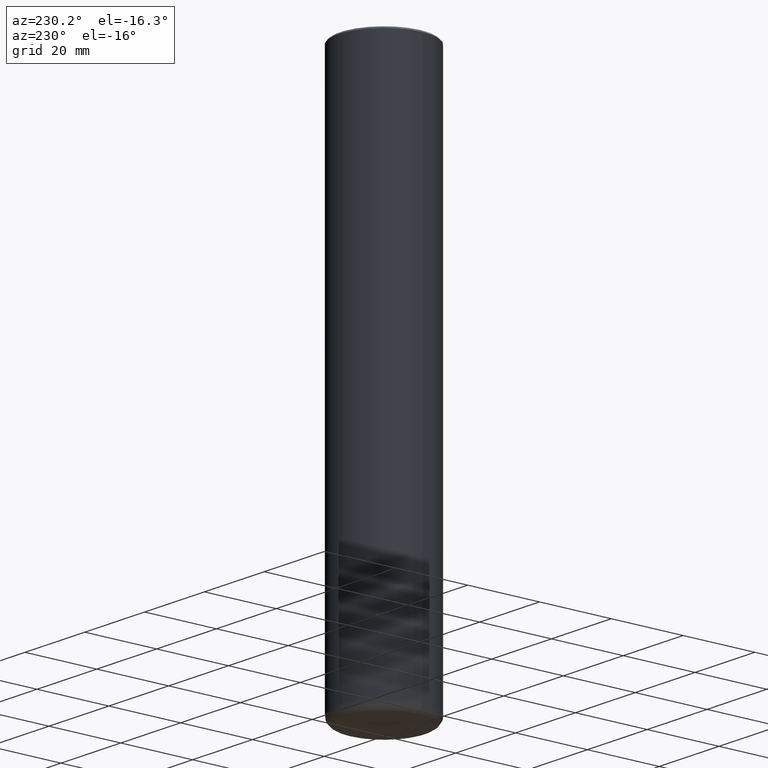
[diagram: clean part render]
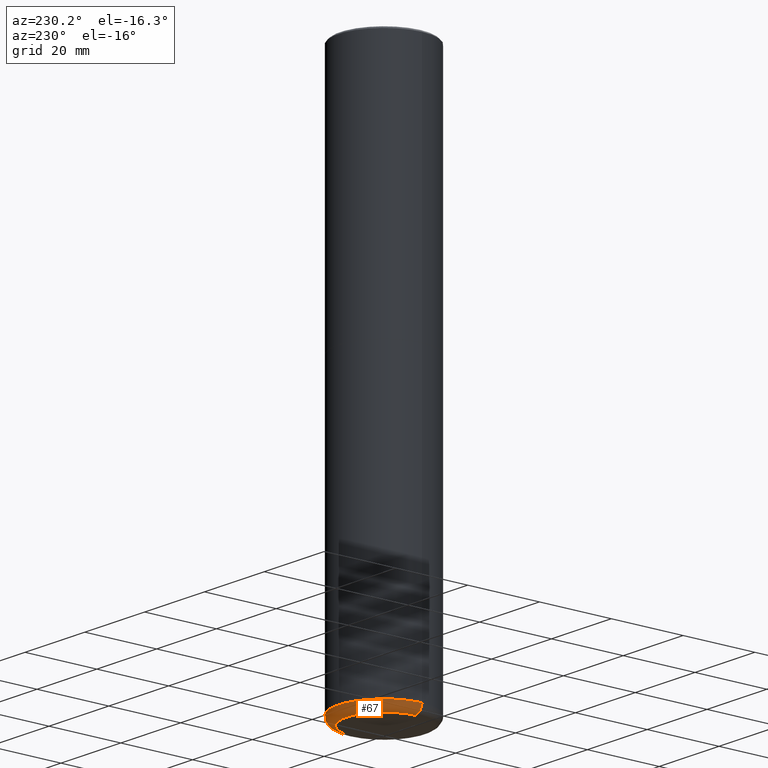
[diagram: same view with one face highlighted and labeled with its STEP entity id]
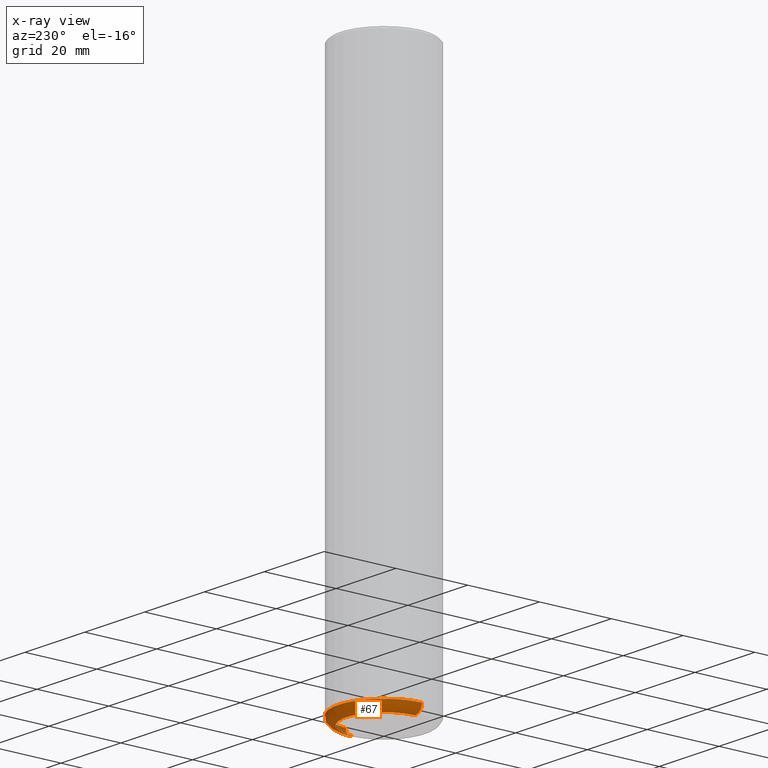
[diagram: x-ray of the same camera — body ghosted, the highlighted face saturated]
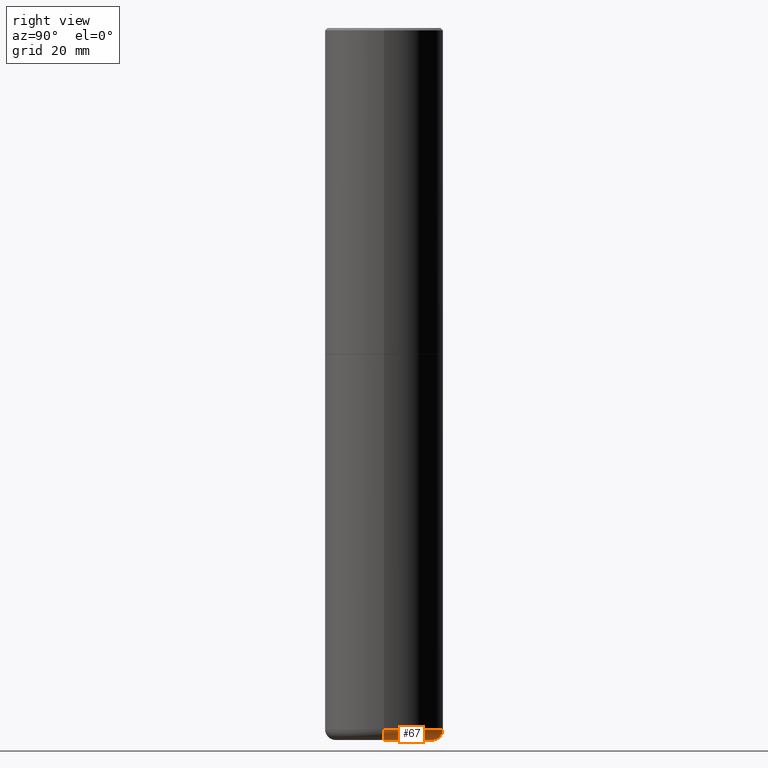
[diagram: same view with one face highlighted and labeled with its STEP entity id]
A machine part, auxiliary view. The second image highlights one B-rep face of the part: STEP entity #67.
The next image is the same camera in x-ray: the body ghosted, the highlighted face saturated — about 0% of this face is hidden behind the body in this view.
A second angle (right view) of the same face is appended — the face is thin or edge-on in the first view.
In plain terms, the highlighted toroidal blend (fillet) surface has major radius 10.414 mm and minor (blend) radius 2.286 mm.
Its self-contained STEP definition (entity closure, byte-faithful):
#10 = CIRCLE ( 'NONE', #102, 0.09000000000000060729 ) ;
#15 = DIRECTION ( 'NONE',  ( -2.445468806185136597E-29, 3.491481338843145583E-15, 1.000000000000000000 ) ) ;
#17 = VERTEX_POINT ( 'NONE', #460 ) ;
#35 = DIRECTION ( 'NONE',  ( -6.982962677686266711E-15, -1.000000000000000000, 3.491481338843145583E-15 ) ) ;
#54 = DIRECTION ( 'NONE',  ( -2.445468806185136597E-29, 3.491481338843145583E-15, 1.000000000000000000 ) ) ;
#65 = AXIS2_PLACEMENT_3D ( 'NONE', #410, #368, #112 ) ;
#67 = ADVANCED_FACE ( 'NONE', ( #208 ), #416, .T. ) ;
#90 = DIRECTION ( 'NONE',  ( 1.000000000000000000, -6.982962677686265133E-15, 4.883557194083112340E-29 ) ) ;
#102 = AXIS2_PLACEMENT_3D ( 'NONE', #490, #35, #341 ) ;
#110 = CARTESIAN_POINT ( 'NONE',  ( -0.4100000000000003642, -1.772144146098855475E-14, -5.910003426924223646 ) ) ;
#112 = DIRECTION ( 'NONE',  ( 1.000000000000000000, -6.982962677686269077E-15, 0.000000000000000000 ) ) ;
#116 = EDGE_CURVE ( 'NONE', #357, #315, #204, .T. ) ;
#121 = CARTESIAN_POINT ( 'NONE',  ( -0.4092146118051471215, -1.756159816700647873E-14, -5.999999999999999112 ) ) ;
#130 = EDGE_LOOP ( 'NONE', ( #319, #154, #131, #324 ) ) ;
#131 = ORIENTED_EDGE ( 'NONE', *, *, #226, .F. ) ;
#150 = AXIS2_PLACEMENT_3D ( 'NONE', #423, #54, #90 ) ;
#154 = ORIENTED_EDGE ( 'NONE', *, *, #116, .T. ) ;
#193 = DIRECTION ( 'NONE',  ( 7.105427357601001859E-15, 1.000000000000000000, -3.491481338843145583E-15 ) ) ;
#204 = CIRCLE ( 'NONE', #417, 0.09000000000000060729 ) ;
#208 = FACE_OUTER_BOUND ( 'NONE', #130, .T. ) ;
#211 = EDGE_CURVE ( 'NONE', #17, #245, #10, .T. ) ;
#218 = CARTESIAN_POINT ( 'NONE',  ( 1.467281283711081734E-28, -2.094888803305886955E-14, -5.999999999999999112 ) ) ;
#226 = EDGE_CURVE ( 'NONE', #245, #315, #361, .T. ) ;
#229 = AXIS2_PLACEMENT_3D ( 'NONE', #218, #15, #356 ) ;
#245 = VERTEX_POINT ( 'NONE', #370 ) ;
#265 = DIRECTION ( 'NONE',  ( -1.000000000000000000, 7.105427357601006592E-15, 0.000000000000000000 ) ) ;
#272 = CARTESIAN_POINT ( 'NONE',  ( -0.5000000000000001110, -1.156540650091130647E-14, -5.910003426924223646 ) ) ;
#315 = VERTEX_POINT ( 'NONE', #272 ) ;
#319 = ORIENTED_EDGE ( 'NONE', *, *, #445, .T. ) ;
#324 = ORIENTED_EDGE ( 'NONE', *, *, #211, .F. ) ;
#341 = DIRECTION ( 'NONE',  ( 1.000000000000000000, -6.982962677686264344E-15, 0.000000000000000000 ) ) ;
#356 = DIRECTION ( 'NONE',  ( 1.000000000000000000, -6.982962677686265922E-15, 0.000000000000000000 ) ) ;
#357 = VERTEX_POINT ( 'NONE', #121 ) ;
#361 = CIRCLE ( 'NONE', #65, 0.5000000000000001110 ) ;
#368 = DIRECTION ( 'NONE',  ( -2.445468806185136597E-29, 3.491481338843145583E-15, 1.000000000000000000 ) ) ;
#370 = CARTESIAN_POINT ( 'NONE',  ( 0.5000000000000001110, -2.412614801644810303E-14, -5.910003426924223646 ) ) ;
#388 = CIRCLE ( 'NONE', #229, 0.4092146118051471215 ) ;
#410 = CARTESIAN_POINT ( 'NONE',  ( 1.445272902499044541E-28, -2.063466667760496652E-14, -5.910003426924223646 ) ) ;
#416 = TOROIDAL_SURFACE ( 'NONE', #150, 0.4100000000000003642, 0.09000000000000064893 ) ;
#417 = AXIS2_PLACEMENT_3D ( 'NONE', #110, #193, #265 ) ;
#423 = CARTESIAN_POINT ( 'NONE',  ( 1.445272902499044541E-28, -2.063466667760496652E-14, -5.910003426924223646 ) ) ;
#445 = EDGE_CURVE ( 'NONE', #17, #357, #388, .T. ) ;
#460 = CARTESIAN_POINT ( 'NONE',  ( 0.4092146118051471215, -2.380641839445808757E-14, -5.999999999999999112 ) ) ;
#490 = CARTESIAN_POINT ( 'NONE',  ( 0.4100000000000003642, -2.349768137545633650E-14, -5.910003426924223646 ) ) ;